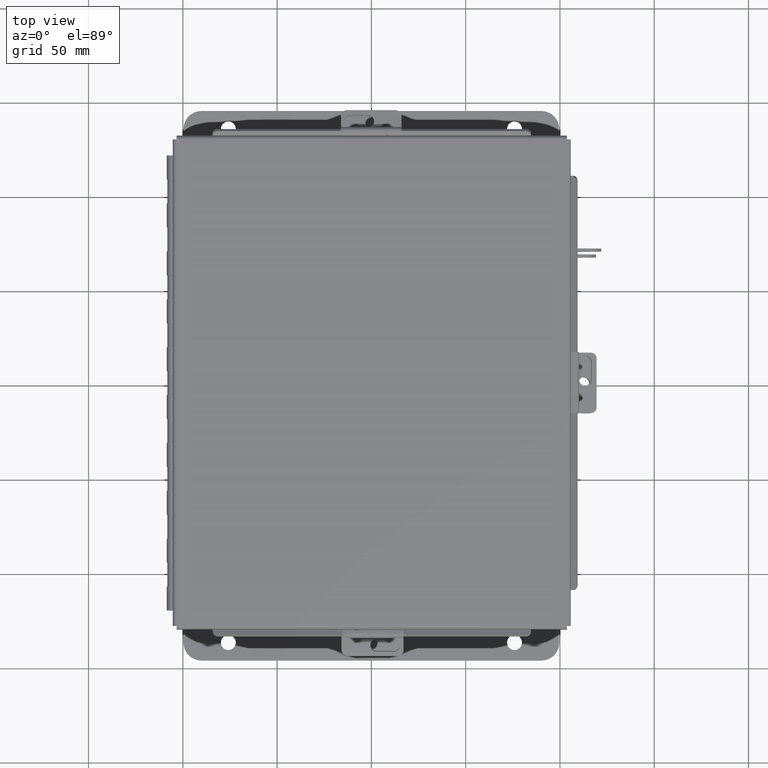
[diagram: clean part render]
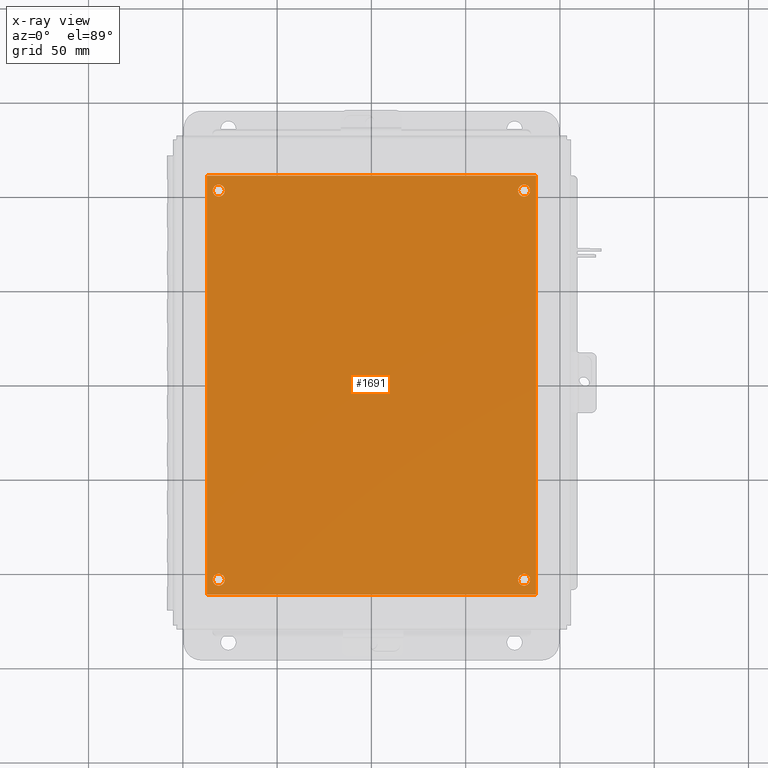
[diagram: x-ray — body ghosted, one internal face saturated and labeled with its STEP entity id]
A machine part, top view, then the same camera in x-ray: the body is ghosted and one INTERNAL B-rep face — a face not visible from any outside direction — is saturated and labeled: STEP entity #1691.
In plain terms, the highlighted planar face has unit normal (0, 0, -1).
Its self-contained STEP definition (entity closure, byte-faithful):
#101 = VECTOR ( 'NONE', #14533, 39.37007874015748100 ) ;
#697 = DIRECTION ( 'NONE',  ( -1.000000000000000000, 0.0000000000000000000, 0.0000000000000000000 ) ) ;
#863 = CARTESIAN_POINT ( 'NONE',  ( 0.0000000000000000000, 0.0000000000000000000, -0.07470000000000003000 ) ) ;
#979 = DIRECTION ( 'NONE',  ( -0.0000000000000000000, -0.0000000000000000000, 1.000000000000000000 ) ) ;
#1001 = VERTEX_POINT ( 'NONE', #3967 ) ;
#1060 = CARTESIAN_POINT ( 'NONE',  ( 6.750000000000003600, 0.3120000000000020500, -0.07470000000000003000 ) ) ;
#1152 = CARTESIAN_POINT ( 'NONE',  ( 6.500000000000000900, 8.438000000000000600, -0.07470000000000003000 ) ) ;
#1271 = VERTEX_POINT ( 'NONE', #14459 ) ;
#1406 = EDGE_CURVE ( 'NONE', #6567, #1001, #7665, .T. ) ;
#1587 = EDGE_LOOP ( 'NONE', ( #6459, #1952 ) ) ;
#1691 = ADVANCED_FACE ( 'NONE', ( #9984, #6208, #16190, #3122, #12897 ), #7868, .T. ) ;
#1727 = ORIENTED_EDGE ( 'NONE', *, *, #3197, .T. ) ;
#1821 = EDGE_LOOP ( 'NONE', ( #10605, #13932 ) ) ;
#1952 = ORIENTED_EDGE ( 'NONE', *, *, #8141, .T. ) ;
#1964 = DIRECTION ( 'NONE',  ( -0.0000000000000000000, -1.000000000000000000, -0.0000000000000000000 ) ) ;
#2061 = AXIS2_PLACEMENT_3D ( 'NONE', #13315, #13132, #13199 ) ;
#2185 = DIRECTION ( 'NONE',  ( -0.0000000000000000000, -0.0000000000000000000, 1.000000000000000000 ) ) ;
#2667 = EDGE_CURVE ( 'NONE', #4100, #16130, #7122, .T. ) ;
#2696 = AXIS2_PLACEMENT_3D ( 'NONE', #13084, #5518, #14338 ) ;
#2883 = CARTESIAN_POINT ( 'NONE',  ( 0.0000000000000000000, 0.0000000000000000000, -0.07470000000000003000 ) ) ;
#3122 = FACE_BOUND ( 'NONE', #7130, .T. ) ;
#3132 = AXIS2_PLACEMENT_3D ( 'NONE', #7822, #7899, #7653 ) ;
#3160 = EDGE_CURVE ( 'NONE', #12255, #5762, #12205, .T. ) ;
#3197 = EDGE_CURVE ( 'NONE', #10510, #11693, #8517, .T. ) ;
#3348 = CARTESIAN_POINT ( 'NONE',  ( 6.625000000000001800, 8.438000000000000600, -0.07470000000000003000 ) ) ;
#3414 = EDGE_CURVE ( 'NONE', #5762, #12255, #16075, .T. ) ;
#3707 = CARTESIAN_POINT ( 'NONE',  ( 6.875000000000000000, 8.750000000000000000, -0.07470000000000003000 ) ) ;
#3721 = EDGE_CURVE ( 'NONE', #15376, #4100, #10822, .T. ) ;
#3965 = CIRCLE ( 'NONE', #15248, 0.1250000000000004400 ) ;
#3967 = CARTESIAN_POINT ( 'NONE',  ( 6.500000000000002700, 0.3120000000000020500, -0.07470000000000003000 ) ) ;
#4001 = LINE ( 'NONE', #7055, #101 ) ;
#4100 = VERTEX_POINT ( 'NONE', #10453 ) ;
#4280 = ORIENTED_EDGE ( 'NONE', *, *, #12625, .T. ) ;
#4384 = ORIENTED_EDGE ( 'NONE', *, *, #2667, .F. ) ;
#4661 = DIRECTION ( 'NONE',  ( -1.000000000000000000, 0.0000000000000000000, 0.0000000000000000000 ) ) ;
#4670 = DIRECTION ( 'NONE',  ( -1.000000000000000000, 0.0000000000000000000, 0.0000000000000000000 ) ) ;
#4888 = DIRECTION ( 'NONE',  ( -0.0000000000000000000, -0.0000000000000000000, 1.000000000000000000 ) ) ;
#4958 = CARTESIAN_POINT ( 'NONE',  ( 0.2500000000000003300, 8.437999999999998800, -0.07470000000000003000 ) ) ;
#5106 = CARTESIAN_POINT ( 'NONE',  ( 0.1250000000000003300, 8.437999999999998800, -0.07470000000000003000 ) ) ;
#5257 = EDGE_CURVE ( 'NONE', #11693, #10510, #13496, .T. ) ;
#5518 = DIRECTION ( 'NONE',  ( -0.0000000000000000000, -0.0000000000000000000, 1.000000000000000000 ) ) ;
#5619 = AXIS2_PLACEMENT_3D ( 'NONE', #12116, #12062, #12004 ) ;
#5762 = VERTEX_POINT ( 'NONE', #14548 ) ;
#5905 = VECTOR ( 'NONE', #1964, 39.37007874015748100 ) ;
#5909 = AXIS2_PLACEMENT_3D ( 'NONE', #4958, #4888, #4661 ) ;
#5984 = CARTESIAN_POINT ( 'NONE',  ( 0.0000000000000000000, 0.0000000000000000000, -0.07470000000000003000 ) ) ;
#6208 = FACE_BOUND ( 'NONE', #1587, .T. ) ;
#6459 = ORIENTED_EDGE ( 'NONE', *, *, #1406, .T. ) ;
#6486 = CARTESIAN_POINT ( 'NONE',  ( 6.625000000000002700, 0.3120000000000020500, -0.07470000000000003000 ) ) ;
#6502 = DIRECTION ( 'NONE',  ( -1.000000000000000000, 0.0000000000000000000, 0.0000000000000000000 ) ) ;
#6539 = DIRECTION ( 'NONE',  ( -0.0000000000000000000, -0.0000000000000000000, 1.000000000000000000 ) ) ;
#6561 = CARTESIAN_POINT ( 'NONE',  ( 0.2500000000000020000, 0.3120000000000015000, -0.07470000000000003000 ) ) ;
#6567 = VERTEX_POINT ( 'NONE', #1060 ) ;
#6851 = ORIENTED_EDGE ( 'NONE', *, *, #3721, .F. ) ;
#7055 = CARTESIAN_POINT ( 'NONE',  ( 6.875000000000000000, 0.0000000000000000000, -0.07470000000000003000 ) ) ;
#7122 = LINE ( 'NONE', #863, #5905 ) ;
#7130 = EDGE_LOOP ( 'NONE', ( #14965, #1727 ) ) ;
#7653 = DIRECTION ( 'NONE',  ( -1.000000000000000000, 0.0000000000000000000, -0.0000000000000000000 ) ) ;
#7665 = CIRCLE ( 'NONE', #13160, 0.1250000000000004400 ) ;
#7822 = CARTESIAN_POINT ( 'NONE',  ( 0.0000000000000000000, 0.0000000000000000000, -0.07470000000000003000 ) ) ;
#7868 = PLANE ( 'NONE',  #3132 ) ;
#7899 = DIRECTION ( 'NONE',  ( 0.0000000000000000000, 0.0000000000000000000, -1.000000000000000000 ) ) ;
#7900 = EDGE_CURVE ( 'NONE', #8778, #8759, #3965, .T. ) ;
#8058 = CIRCLE ( 'NONE', #2696, 0.1250000000000004400 ) ;
#8141 = EDGE_CURVE ( 'NONE', #1001, #6567, #8058, .T. ) ;
#8423 = EDGE_CURVE ( 'NONE', #16130, #1271, #9977, .T. ) ;
#8517 = CIRCLE ( 'NONE', #5909, 0.1250000000000000000 ) ;
#8759 = VERTEX_POINT ( 'NONE', #1152 ) ;
#8778 = VERTEX_POINT ( 'NONE', #9015 ) ;
#9015 = CARTESIAN_POINT ( 'NONE',  ( 6.750000000000001800, 8.438000000000000600, -0.07470000000000003000 ) ) ;
#9221 = ORIENTED_EDGE ( 'NONE', *, *, #11751, .F. ) ;
#9386 = AXIS2_PLACEMENT_3D ( 'NONE', #3348, #12296, #4670 ) ;
#9433 = CIRCLE ( 'NONE', #9386, 0.1250000000000004400 ) ;
#9482 = CARTESIAN_POINT ( 'NONE',  ( 0.3750000000000003900, 8.437999999999998800, -0.07470000000000003000 ) ) ;
#9576 = CARTESIAN_POINT ( 'NONE',  ( 0.0000000000000000000, 8.750000000000000000, -0.07470000000000003000 ) ) ;
#9949 = CARTESIAN_POINT ( 'NONE',  ( 6.625000000000001800, 8.438000000000000600, -0.07470000000000003000 ) ) ;
#9977 = LINE ( 'NONE', #5984, #16186 ) ;
#9984 = FACE_BOUND ( 'NONE', #1821, .T. ) ;
#10156 = DIRECTION ( 'NONE',  ( -1.000000000000000000, -0.0000000000000000000, -0.0000000000000000000 ) ) ;
#10453 = CARTESIAN_POINT ( 'NONE',  ( 0.0000000000000000000, 8.750000000000000000, -0.07470000000000003000 ) ) ;
#10510 = VERTEX_POINT ( 'NONE', #5106 ) ;
#10605 = ORIENTED_EDGE ( 'NONE', *, *, #3160, .T. ) ;
#10822 = LINE ( 'NONE', #9576, #12589 ) ;
#11184 = DIRECTION ( 'NONE',  ( -1.000000000000000000, 0.0000000000000000000, 0.0000000000000000000 ) ) ;
#11650 = CARTESIAN_POINT ( 'NONE',  ( 0.3750000000000020000, 0.3120000000000015000, -0.07470000000000003000 ) ) ;
#11693 = VERTEX_POINT ( 'NONE', #9482 ) ;
#11751 = EDGE_CURVE ( 'NONE', #1271, #15376, #4001, .T. ) ;
#11952 = ORIENTED_EDGE ( 'NONE', *, *, #8423, .F. ) ;
#12004 = DIRECTION ( 'NONE',  ( -1.000000000000000000, 0.0000000000000000000, 0.0000000000000000000 ) ) ;
#12062 = DIRECTION ( 'NONE',  ( -0.0000000000000000000, -0.0000000000000000000, 1.000000000000000000 ) ) ;
#12116 = CARTESIAN_POINT ( 'NONE',  ( 0.2500000000000003300, 8.437999999999998800, -0.07470000000000003000 ) ) ;
#12205 = CIRCLE ( 'NONE', #16284, 0.1250000000000000600 ) ;
#12255 = VERTEX_POINT ( 'NONE', #11650 ) ;
#12296 = DIRECTION ( 'NONE',  ( -0.0000000000000000000, -0.0000000000000000000, 1.000000000000000000 ) ) ;
#12370 = DIRECTION ( 'NONE',  ( 1.000000000000000000, 0.0000000000000000000, 0.0000000000000000000 ) ) ;
#12589 = VECTOR ( 'NONE', #10156, 39.37007874015748100 ) ;
#12619 = EDGE_LOOP ( 'NONE', ( #4384, #6851, #9221, #11952 ) ) ;
#12625 = EDGE_CURVE ( 'NONE', #8759, #8778, #9433, .T. ) ;
#12897 = FACE_OUTER_BOUND ( 'NONE', #12619, .T. ) ;
#12953 = ORIENTED_EDGE ( 'NONE', *, *, #7900, .T. ) ;
#12999 = EDGE_LOOP ( 'NONE', ( #12953, #4280 ) ) ;
#13084 = CARTESIAN_POINT ( 'NONE',  ( 6.625000000000002700, 0.3120000000000020500, -0.07470000000000003000 ) ) ;
#13132 = DIRECTION ( 'NONE',  ( -0.0000000000000000000, -0.0000000000000000000, 1.000000000000000000 ) ) ;
#13160 = AXIS2_PLACEMENT_3D ( 'NONE', #6486, #979, #697 ) ;
#13199 = DIRECTION ( 'NONE',  ( -1.000000000000000000, 0.0000000000000000000, 0.0000000000000000000 ) ) ;
#13315 = CARTESIAN_POINT ( 'NONE',  ( 0.2500000000000020000, 0.3120000000000015000, -0.07470000000000003000 ) ) ;
#13496 = CIRCLE ( 'NONE', #5619, 0.1250000000000000000 ) ;
#13932 = ORIENTED_EDGE ( 'NONE', *, *, #3414, .T. ) ;
#14338 = DIRECTION ( 'NONE',  ( -1.000000000000000000, 0.0000000000000000000, 0.0000000000000000000 ) ) ;
#14459 = CARTESIAN_POINT ( 'NONE',  ( 6.875000000000000000, 0.0000000000000000000, -0.07470000000000003000 ) ) ;
#14533 = DIRECTION ( 'NONE',  ( 0.0000000000000000000, 1.000000000000000000, 0.0000000000000000000 ) ) ;
#14548 = CARTESIAN_POINT ( 'NONE',  ( 0.1250000000000019200, 0.3120000000000015000, -0.07470000000000003000 ) ) ;
#14965 = ORIENTED_EDGE ( 'NONE', *, *, #5257, .T. ) ;
#15248 = AXIS2_PLACEMENT_3D ( 'NONE', #9949, #2185, #11184 ) ;
#15376 = VERTEX_POINT ( 'NONE', #3707 ) ;
#16075 = CIRCLE ( 'NONE', #2061, 0.1250000000000000600 ) ;
#16130 = VERTEX_POINT ( 'NONE', #2883 ) ;
#16186 = VECTOR ( 'NONE', #12370, 39.37007874015748100 ) ;
#16190 = FACE_BOUND ( 'NONE', #12999, .T. ) ;
#16284 = AXIS2_PLACEMENT_3D ( 'NONE', #6561, #6539, #6502 ) ;